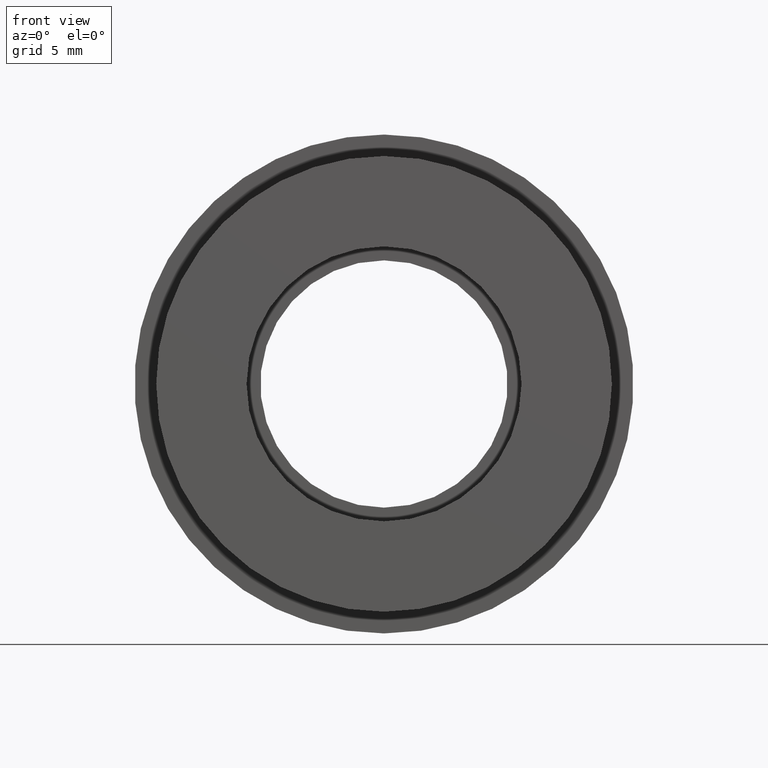
[diagram: clean part render]
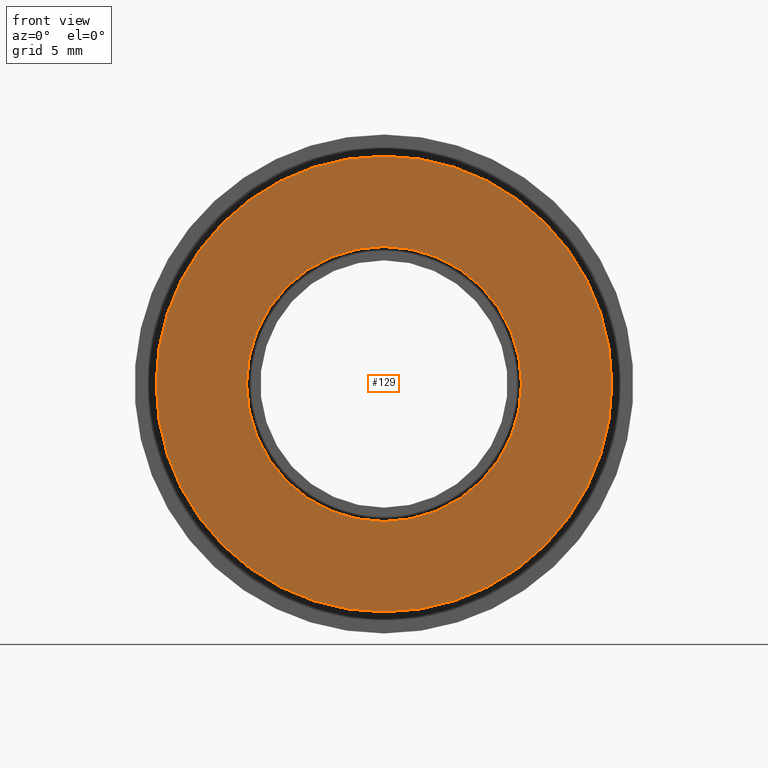
[diagram: same view with one face highlighted and labeled with its STEP entity id]
A machine part, front view. The second image highlights one B-rep face of the part: STEP entity #129.
In plain terms, the highlighted planar face has unit normal (-0, 1, 0).
Its self-contained STEP definition (entity closure, byte-faithful):
#2 = AXIS2_PLACEMENT_3D ( 'NONE', #32, #214, #441 ) ;
#6 = CARTESIAN_POINT ( 'NONE',  ( 0.0000000000000000000, 0.0000000000000000000, 0.0000000000000000000 ) ) ;
#32 = CARTESIAN_POINT ( 'NONE',  ( 0.0000000000000000000, 0.0000000000000000000, 0.0000000000000000000 ) ) ;
#38 = DIRECTION ( 'NONE',  ( 0.0000000000000000000, 0.0000000000000000000, 1.000000000000000000 ) ) ;
#42 = CIRCLE ( 'NONE', #365, 11.60000000000000000 ) ;
#43 = CIRCLE ( 'NONE', #111, 11.60000000000000000 ) ;
#80 = EDGE_CURVE ( 'NONE', #146, #172, #42, .T. ) ;
#87 = VERTEX_POINT ( 'NONE', #159 ) ;
#97 = DIRECTION ( 'NONE',  ( 0.0000000000000000000, 0.0000000000000000000, 1.000000000000000000 ) ) ;
#111 = AXIS2_PLACEMENT_3D ( 'NONE', #215, #218, #228 ) ;
#129 = ADVANCED_FACE ( 'NONE', ( #421, #285 ), #374, .F. ) ;
#146 = VERTEX_POINT ( 'NONE', #534 ) ;
#157 = DIRECTION ( 'NONE',  ( -0.0000000000000000000, 1.000000000000000000, -0.0000000000000000000 ) ) ;
#159 = CARTESIAN_POINT ( 'NONE',  ( 0.0000000000000000000, 0.0000000000000000000, 7.000000000000001800 ) ) ;
#168 = CARTESIAN_POINT ( 'NONE',  ( 0.0000000000000000000, 0.0000000000000000000, 0.0000000000000000000 ) ) ;
#172 = VERTEX_POINT ( 'NONE', #294 ) ;
#179 = EDGE_LOOP ( 'NONE', ( #474, #582 ) ) ;
#180 = DIRECTION ( 'NONE',  ( -0.0000000000000000000, 1.000000000000000000, -0.0000000000000000000 ) ) ;
#197 = ORIENTED_EDGE ( 'NONE', *, *, #621, .T. ) ;
#198 = AXIS2_PLACEMENT_3D ( 'NONE', #168, #180, #97 ) ;
#214 = DIRECTION ( 'NONE',  ( -0.0000000000000000000, 1.000000000000000000, -0.0000000000000000000 ) ) ;
#215 = CARTESIAN_POINT ( 'NONE',  ( 0.0000000000000000000, 0.0000000000000000000, 0.0000000000000000000 ) ) ;
#218 = DIRECTION ( 'NONE',  ( -0.0000000000000000000, 1.000000000000000000, -0.0000000000000000000 ) ) ;
#228 = DIRECTION ( 'NONE',  ( 0.0000000000000000000, 0.0000000000000000000, 1.000000000000000000 ) ) ;
#267 = EDGE_LOOP ( 'NONE', ( #400, #197 ) ) ;
#271 = CIRCLE ( 'NONE', #2, 7.000000000000001800 ) ;
#285 = FACE_BOUND ( 'NONE', #267, .T. ) ;
#287 = CARTESIAN_POINT ( 'NONE',  ( 8.572527594031475200E-016, 0.0000000000000000000, -7.000000000000002700 ) ) ;
#294 = CARTESIAN_POINT ( 'NONE',  ( 1.420590287010929500E-015, 0.0000000000000000000, -11.60000000000000000 ) ) ;
#332 = AXIS2_PLACEMENT_3D ( 'NONE', #398, #355, #38 ) ;
#355 = DIRECTION ( 'NONE',  ( -0.0000000000000000000, 1.000000000000000000, 0.0000000000000000000 ) ) ;
#365 = AXIS2_PLACEMENT_3D ( 'NONE', #6, #157, #406 ) ;
#371 = EDGE_CURVE ( 'NONE', #87, #471, #540, .T. ) ;
#374 = PLANE ( 'NONE',  #332 ) ;
#398 = CARTESIAN_POINT ( 'NONE',  ( 11.60000000000000000, -3.490243377569956600E-016, 0.0000000000000000000 ) ) ;
#400 = ORIENTED_EDGE ( 'NONE', *, *, #371, .T. ) ;
#406 = DIRECTION ( 'NONE',  ( 0.0000000000000000000, 0.0000000000000000000, 1.000000000000000000 ) ) ;
#421 = FACE_OUTER_BOUND ( 'NONE', #179, .T. ) ;
#441 = DIRECTION ( 'NONE',  ( 0.0000000000000000000, 0.0000000000000000000, 1.000000000000000000 ) ) ;
#468 = EDGE_CURVE ( 'NONE', #172, #146, #43, .T. ) ;
#471 = VERTEX_POINT ( 'NONE', #287 ) ;
#474 = ORIENTED_EDGE ( 'NONE', *, *, #80, .F. ) ;
#534 = CARTESIAN_POINT ( 'NONE',  ( 0.0000000000000000000, 0.0000000000000000000, 11.60000000000000000 ) ) ;
#540 = CIRCLE ( 'NONE', #198, 7.000000000000001800 ) ;
#582 = ORIENTED_EDGE ( 'NONE', *, *, #468, .F. ) ;
#621 = EDGE_CURVE ( 'NONE', #471, #87, #271, .T. ) ;